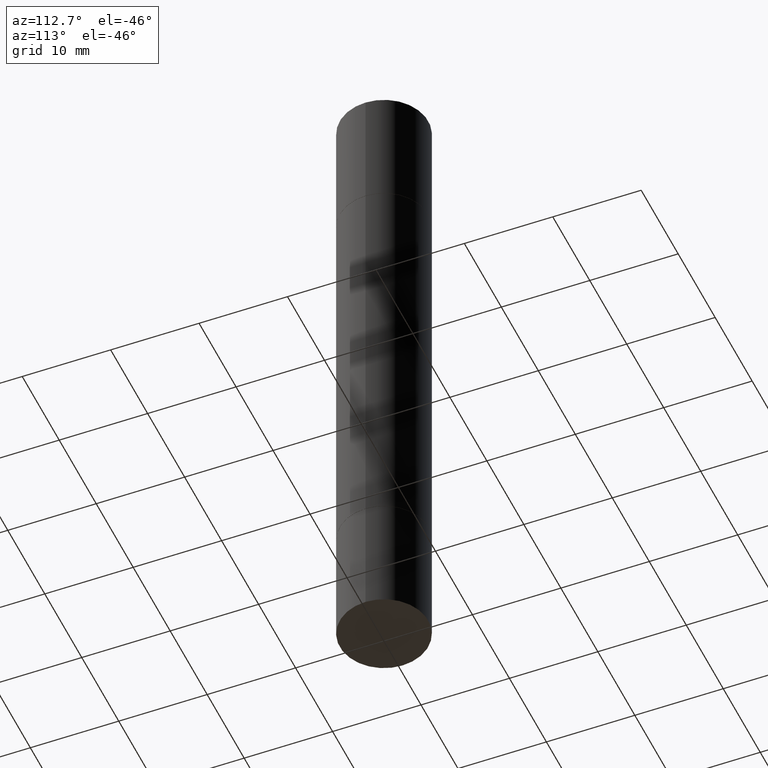
[diagram: clean part render]
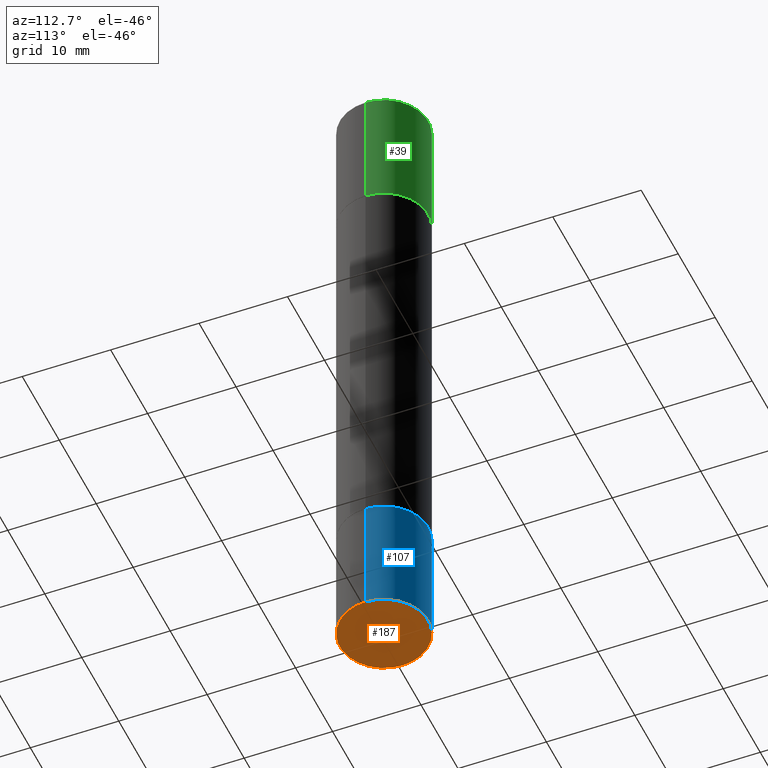
[diagram: same view with three faces highlighted in distinct colors, each labeled with its STEP entity id]
A machine part, auxiliary view with three faces highlighted in distinct colors.
Their STEP definitions:

[orange] entity #187 — the highlighted planar face has unit normal (0, -0, -1).
#20 = CARTESIAN_POINT ( 'NONE',  ( 7.220980290903470182E-29, -1.030964609733603853E-14, -2.952799999999999869 ) ) ;
#24 = DIRECTION ( 'NONE',  ( -2.445468806185136597E-29, 3.491481338843145583E-15, 1.000000000000000000 ) ) ;
#26 = EDGE_CURVE ( 'NONE', #249, #511, #306, .T. ) ;
#114 = AXIS2_PLACEMENT_3D ( 'NONE', #20, #132, #660 ) ;
#131 = CARTESIAN_POINT ( 'NONE',  ( 7.220980290903470182E-29, -1.030964609733603853E-14, -2.952799999999999869 ) ) ;
#132 = DIRECTION ( 'NONE',  ( -2.445468806185136597E-29, 3.491481338843145583E-15, 1.000000000000000000 ) ) ;
#152 = CARTESIAN_POINT ( 'NONE',  ( -0.1968500000000000250, -7.948690465007109319E-15, -2.952799999999999869 ) ) ;
#187 = ADVANCED_FACE ( 'NONE', ( #502 ), #354, .T. ) ;
#196 = CARTESIAN_POINT ( 'NONE',  ( 0.1968500000000000250, -1.168424230043858014E-14, -2.952799999999999869 ) ) ;
#249 = VERTEX_POINT ( 'NONE', #152 ) ;
#260 = AXIS2_PLACEMENT_3D ( 'NONE', #131, #24, #288 ) ;
#288 = DIRECTION ( 'NONE',  ( 1.000000000000000000, -6.982962677686267499E-15, 0.000000000000000000 ) ) ;
#306 = CIRCLE ( 'NONE', #260, 0.1968500000000000250 ) ;
#350 = DIRECTION ( 'NONE',  ( 2.438088387897960049E-29, -3.491481338843145188E-15, -1.000000000000000000 ) ) ;
#354 = PLANE ( 'NONE',  #656 ) ;
#399 = CIRCLE ( 'NONE', #114, 0.1968500000000000250 ) ;
#460 = CARTESIAN_POINT ( 'NONE',  ( 1.374596203102613789E-15, 0.1968499999999896999, -2.952800000000000313 ) ) ;
#470 = EDGE_LOOP ( 'NONE', ( #638, #669 ) ) ;
#502 = FACE_OUTER_BOUND ( 'NONE', #470, .T. ) ;
#511 = VERTEX_POINT ( 'NONE', #196 ) ;
#533 = EDGE_CURVE ( 'NONE', #511, #249, #399, .T. ) ;
#638 = ORIENTED_EDGE ( 'NONE', *, *, #533, .F. ) ;
#656 = AXIS2_PLACEMENT_3D ( 'NONE', #460, #350, #664 ) ;
#660 = DIRECTION ( 'NONE',  ( 1.000000000000000000, -6.982962677686267499E-15, 0.000000000000000000 ) ) ;
#664 = DIRECTION ( 'NONE',  ( -1.000000000000000000, 6.982962677686265922E-15, -4.876176775795935793E-29 ) ) ;
#669 = ORIENTED_EDGE ( 'NONE', *, *, #26, .F. ) ;

[blue] entity #107 — the highlighted cylindrical surface (partial cylindrical patch) has radius 5 mm, axis along (-0, 0, 1).
#13 = EDGE_CURVE ( 'NONE', #511, #220, #338, .T. ) ;
#20 = CARTESIAN_POINT ( 'NONE',  ( 7.220980290903470182E-29, -1.030964609733603853E-14, -2.952799999999999869 ) ) ;
#48 = LINE ( 'NONE', #357, #408 ) ;
#62 = EDGE_LOOP ( 'NONE', ( #348, #315, #121, #218 ) ) ;
#103 = DIRECTION ( 'NONE',  ( -2.445468806185136877E-29, 3.491481338843145188E-15, 1.000000000000000000 ) ) ;
#107 = ADVANCED_FACE ( 'NONE', ( #300 ), #510, .T. ) ;
#114 = AXIS2_PLACEMENT_3D ( 'NONE', #20, #132, #660 ) ;
#121 = ORIENTED_EDGE ( 'NONE', *, *, #299, .F. ) ;
#132 = DIRECTION ( 'NONE',  ( -2.445468806185136597E-29, 3.491481338843145583E-15, 1.000000000000000000 ) ) ;
#152 = CARTESIAN_POINT ( 'NONE',  ( -0.1968500000000000250, -7.948690465007109319E-15, -2.952799999999999869 ) ) ;
#168 = AXIS2_PLACEMENT_3D ( 'NONE', #402, #347, #400 ) ;
#176 = VECTOR ( 'NONE', #599, 39.37007874015748143 ) ;
#184 = CARTESIAN_POINT ( 'NONE',  ( 0.1968500000000000250, -1.374596203102541608E-15, 9.598753983154300858E-30 ) ) ;
#196 = CARTESIAN_POINT ( 'NONE',  ( 0.1968500000000000250, -1.168424230043858014E-14, -2.952799999999999869 ) ) ;
#217 = CARTESIAN_POINT ( 'NONE',  ( -0.1968500000000000250, -7.948690465007109319E-15, -2.401599999999999735 ) ) ;
#218 = ORIENTED_EDGE ( 'NONE', *, *, #13, .F. ) ;
#219 = DIRECTION ( 'NONE',  ( 1.000000000000000000, -6.982962677686262766E-15, 0.000000000000000000 ) ) ;
#220 = VERTEX_POINT ( 'NONE', #668 ) ;
#249 = VERTEX_POINT ( 'NONE', #152 ) ;
#254 = EDGE_CURVE ( 'NONE', #249, #328, #48, .T. ) ;
#299 = EDGE_CURVE ( 'NONE', #220, #328, #346, .T. ) ;
#300 = FACE_OUTER_BOUND ( 'NONE', #62, .T. ) ;
#315 = ORIENTED_EDGE ( 'NONE', *, *, #254, .T. ) ;
#328 = VERTEX_POINT ( 'NONE', #217 ) ;
#338 = LINE ( 'NONE', #184, #176 ) ;
#346 = CIRCLE ( 'NONE', #557, 0.1968500000000000250 ) ;
#347 = DIRECTION ( 'NONE',  ( -2.445468806185136597E-29, 3.491481338843145583E-15, 1.000000000000000000 ) ) ;
#348 = ORIENTED_EDGE ( 'NONE', *, *, #533, .T. ) ;
#357 = CARTESIAN_POINT ( 'NONE',  ( -0.1968500000000000250, 1.398703375343757393E-15, -9.682923725166783677E-30 ) ) ;
#363 = CARTESIAN_POINT ( 'NONE',  ( 5.873037884934223228E-29, -8.385141583365697263E-15, -2.401599999999999735 ) ) ;
#399 = CIRCLE ( 'NONE', #114, 0.1968500000000000250 ) ;
#400 = DIRECTION ( 'NONE',  ( 1.000000000000000000, -6.982962677686265922E-15, 4.876176775795935793E-29 ) ) ;
#402 = CARTESIAN_POINT ( 'NONE',  ( 0.000000000000000000, 0.000000000000000000, 0.000000000000000000 ) ) ;
#408 = VECTOR ( 'NONE', #103, 39.37007874015748143 ) ;
#474 = DIRECTION ( 'NONE',  ( -2.445468806185136597E-29, 3.491481338843145583E-15, 1.000000000000000000 ) ) ;
#510 = CYLINDRICAL_SURFACE ( 'NONE', #168, 0.1968500000000000250 ) ;
#511 = VERTEX_POINT ( 'NONE', #196 ) ;
#533 = EDGE_CURVE ( 'NONE', #511, #249, #399, .T. ) ;
#557 = AXIS2_PLACEMENT_3D ( 'NONE', #363, #474, #219 ) ;
#599 = DIRECTION ( 'NONE',  ( -2.445468806185136877E-29, 3.491481338843145188E-15, 1.000000000000000000 ) ) ;
#660 = DIRECTION ( 'NONE',  ( 1.000000000000000000, -6.982962677686267499E-15, 0.000000000000000000 ) ) ;
#668 = CARTESIAN_POINT ( 'NONE',  ( 0.1968500000000000250, -9.759737786468237294E-15, -2.401599999999999735 ) ) ;

[green] entity #39 — the highlighted cylindrical surface (partial cylindrical patch) has radius 5 mm, axis along (-0, -0, -1).
#21 = DIRECTION ( 'NONE',  ( -2.445468806185136597E-29, -3.492890411551752677E-15, -1.000000000000000000 ) ) ;
#22 = EDGE_CURVE ( 'NONE', #292, #430, #228, .T. ) ;
#39 = ADVANCED_FACE ( 'NONE', ( #549 ), #490, .T. ) ;
#50 = CARTESIAN_POINT ( 'NONE',  ( 0.1968500000000000250, -3.297797043002877729E-15, -0.5511999999999995792 ) ) ;
#100 = VECTOR ( 'NONE', #554, 39.37007874015748143 ) ;
#123 = EDGE_CURVE ( 'NONE', #364, #614, #558, .T. ) ;
#169 = CIRCLE ( 'NONE', #232, 0.1968500000000000250 ) ;
#186 = CARTESIAN_POINT ( 'NONE',  ( 0.000000000000000000, -1.031172645228302408E-14, -2.952799999999998981 ) ) ;
#228 = LINE ( 'NONE', #384, #665 ) ;
#232 = AXIS2_PLACEMENT_3D ( 'NONE', #629, #366, #652 ) ;
#236 = DIRECTION ( 'NONE',  ( 1.000000000000000000, -6.982962677686267499E-15, 0.000000000000000000 ) ) ;
#247 = ORIENTED_EDGE ( 'NONE', *, *, #440, .F. ) ;
#285 = ORIENTED_EDGE ( 'NONE', *, *, #22, .F. ) ;
#292 = VERTEX_POINT ( 'NONE', #587 ) ;
#341 = DIRECTION ( 'NONE',  ( 2.445468806185136597E-29, 3.492890411551752677E-15, 1.000000000000000000 ) ) ;
#358 = AXIS2_PLACEMENT_3D ( 'NONE', #186, #21, #236 ) ;
#364 = VERTEX_POINT ( 'NONE', #578 ) ;
#366 = DIRECTION ( 'NONE',  ( 2.445468806185136597E-29, 3.492890411551752677E-15, 1.000000000000000000 ) ) ;
#384 = CARTESIAN_POINT ( 'NONE',  ( -0.1968500000000000250, -8.961237421421697861E-15, -2.952799999999998981 ) ) ;
#414 = CARTESIAN_POINT ( 'NONE',  ( -0.1968500000000000250, 3.899287883846532010E-16, -0.5511999999999995792 ) ) ;
#430 = VERTEX_POINT ( 'NONE', #414 ) ;
#439 = CARTESIAN_POINT ( 'NONE',  ( 5.873037884934223228E-29, -1.923200839900336120E-15, -0.5511999999999995792 ) ) ;
#440 = EDGE_CURVE ( 'NONE', #364, #292, #169, .T. ) ;
#449 = CARTESIAN_POINT ( 'NONE',  ( 0.1968500000000000250, -1.168632265538556569E-14, -2.952799999999998981 ) ) ;
#473 = ORIENTED_EDGE ( 'NONE', *, *, #123, .T. ) ;
#481 = EDGE_LOOP ( 'NONE', ( #285, #247, #473, #567 ) ) ;
#490 = CYLINDRICAL_SURFACE ( 'NONE', #358, 0.1968500000000000250 ) ;
#492 = DIRECTION ( 'NONE',  ( -2.445468806185136877E-29, -3.492890411551753071E-15, -1.000000000000000000 ) ) ;
#520 = EDGE_CURVE ( 'NONE', #614, #430, #545, .T. ) ;
#545 = CIRCLE ( 'NONE', #657, 0.1968500000000000250 ) ;
#549 = FACE_OUTER_BOUND ( 'NONE', #481, .T. ) ;
#554 = DIRECTION ( 'NONE',  ( -2.445468806185136877E-29, -3.492890411551753071E-15, -1.000000000000000000 ) ) ;
#558 = LINE ( 'NONE', #449, #100 ) ;
#567 = ORIENTED_EDGE ( 'NONE', *, *, #520, .T. ) ;
#578 = CARTESIAN_POINT ( 'NONE',  ( 0.1968500000000000250, -1.372515848155552113E-15, 5.463695987328526437E-16 ) ) ;
#587 = CARTESIAN_POINT ( 'NONE',  ( -0.1968500000000000250, 3.899287883846529545E-16, 5.463695987328561936E-16 ) ) ;
#614 = VERTEX_POINT ( 'NONE', #50 ) ;
#629 = CARTESIAN_POINT ( 'NONE',  ( 7.220980290903470182E-29, 2.080354946989631982E-18, 5.463695987328526437E-16 ) ) ;
#652 = DIRECTION ( 'NONE',  ( 1.000000000000000000, -6.982962677686265922E-15, 0.000000000000000000 ) ) ;
#657 = AXIS2_PLACEMENT_3D ( 'NONE', #439, #341, #658 ) ;
#658 = DIRECTION ( 'NONE',  ( 1.000000000000000000, -6.982962677686267499E-15, 0.000000000000000000 ) ) ;
#665 = VECTOR ( 'NONE', #492, 39.37007874015748143 ) ;